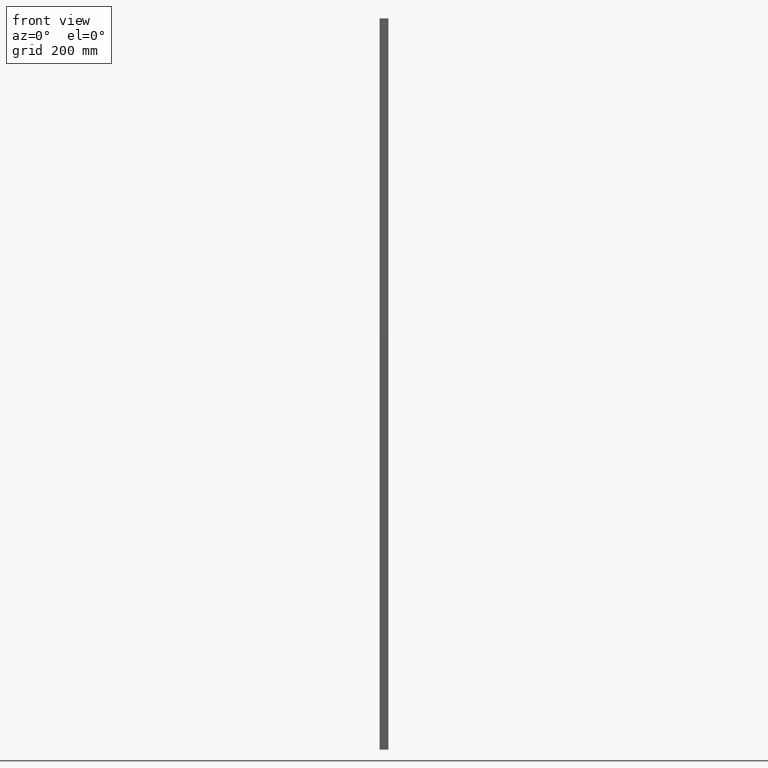
[diagram: clean part render]
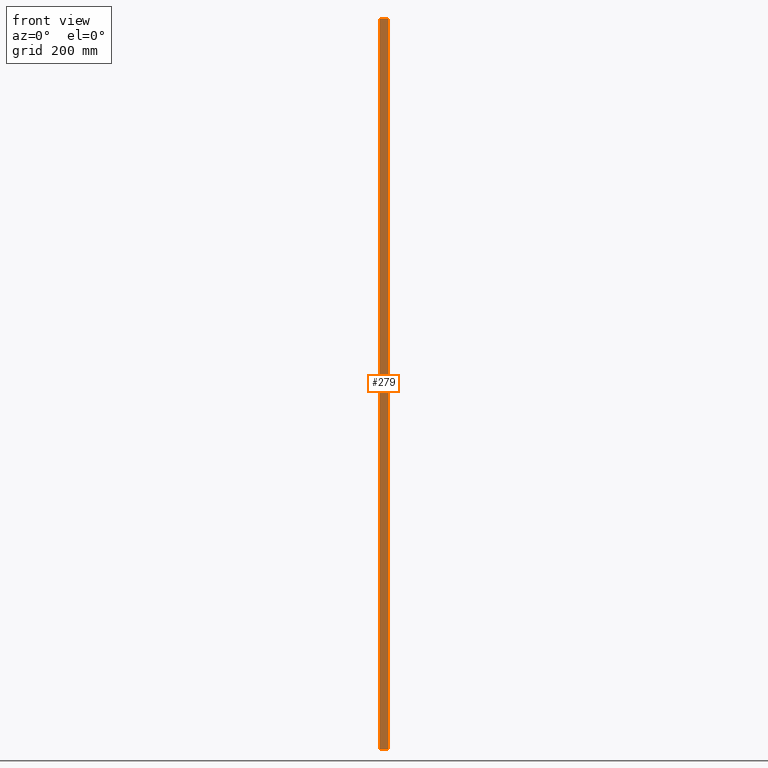
[diagram: same view with one face highlighted and labeled with its STEP entity id]
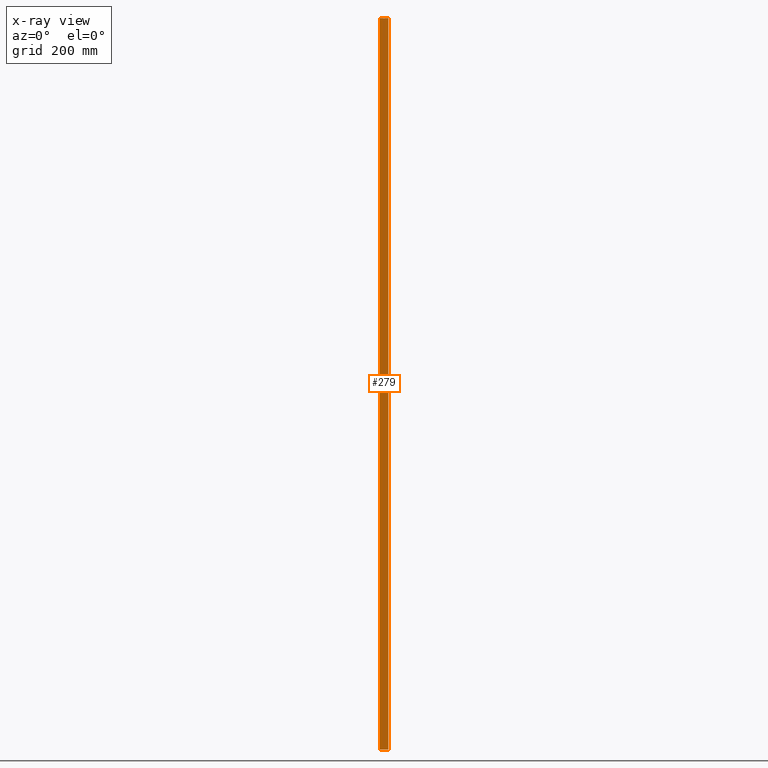
[diagram: x-ray of the same camera — body ghosted, the highlighted face saturated]
A machine part, front view. The second image highlights one B-rep face of the part: STEP entity #279.
The next image is the same camera in x-ray: the body ghosted, the highlighted face saturated — about 0% of this face is hidden behind the body in this view.
In plain terms, the highlighted planar face has unit normal (0, 1, 0).
Its self-contained STEP definition (entity closure, byte-faithful):
#5 = DIRECTION ( 'NONE',  ( 1.000000000000000000, 0.0000000000000000000, 0.0000000000000000000 ) ) ;
#20 = LINE ( 'NONE', #149, #322 ) ;
#33 = CARTESIAN_POINT ( 'NONE',  ( -14.70000000000000300, -12.49999999999999600, -1250.000000000000000 ) ) ;
#69 = LINE ( 'NONE', #33, #761 ) ;
#96 = VECTOR ( 'NONE', #816, 1000.000000000000000 ) ;
#119 = DIRECTION ( 'NONE',  ( -0.0000000000000000000, -0.0000000000000000000, -1.000000000000000000 ) ) ;
#149 = CARTESIAN_POINT ( 'NONE',  ( -14.70000000000000300, -12.49999999999999600, 1250.000000000000000 ) ) ;
#174 = ORIENTED_EDGE ( 'NONE', *, *, #661, .T. ) ;
#182 = ORIENTED_EDGE ( 'NONE', *, *, #206, .F. ) ;
#197 = FACE_OUTER_BOUND ( 'NONE', #744, .T. ) ;
#206 = EDGE_CURVE ( 'NONE', #277, #329, #694, .T. ) ;
#213 = EDGE_CURVE ( 'NONE', #372, #277, #521, .T. ) ;
#277 = VERTEX_POINT ( 'NONE', #682 ) ;
#279 = ADVANCED_FACE ( 'NONE', ( #197 ), #677, .F. ) ;
#310 = VECTOR ( 'NONE', #813, 1000.000000000000000 ) ;
#322 = VECTOR ( 'NONE', #119, 1000.000000000000000 ) ;
#329 = VERTEX_POINT ( 'NONE', #556 ) ;
#370 = VERTEX_POINT ( 'NONE', #516 ) ;
#372 = VERTEX_POINT ( 'NONE', #522 ) ;
#516 = CARTESIAN_POINT ( 'NONE',  ( -14.70000000000000300, -12.49999999999999600, -1250.000000000000000 ) ) ;
#521 = LINE ( 'NONE', #807, #96 ) ;
#522 = CARTESIAN_POINT ( 'NONE',  ( -14.70000000000000300, -12.49999999999999600, 1250.000000000000000 ) ) ;
#556 = CARTESIAN_POINT ( 'NONE',  ( 14.70000000000000300, -12.49999999999999600, -1250.000000000000000 ) ) ;
#605 = EDGE_CURVE ( 'NONE', #372, #370, #20, .T. ) ;
#661 = EDGE_CURVE ( 'NONE', #370, #329, #69, .T. ) ;
#673 = ORIENTED_EDGE ( 'NONE', *, *, #605, .T. ) ;
#674 = DIRECTION ( 'NONE',  ( 0.0000000000000000000, -0.0000000000000000000, 1.000000000000000000 ) ) ;
#676 = DIRECTION ( 'NONE',  ( 0.0000000000000000000, 1.000000000000000000, 0.0000000000000000000 ) ) ;
#677 = PLANE ( 'NONE',  #800 ) ;
#682 = CARTESIAN_POINT ( 'NONE',  ( 14.70000000000000300, -12.49999999999999600, 1250.000000000000000 ) ) ;
#694 = LINE ( 'NONE', #827, #310 ) ;
#722 = CARTESIAN_POINT ( 'NONE',  ( -14.70000000000000300, -12.49999999999999600, 1250.000000000000000 ) ) ;
#744 = EDGE_LOOP ( 'NONE', ( #174, #182, #754, #673 ) ) ;
#754 = ORIENTED_EDGE ( 'NONE', *, *, #213, .F. ) ;
#761 = VECTOR ( 'NONE', #5, 1000.000000000000000 ) ;
#800 = AXIS2_PLACEMENT_3D ( 'NONE', #722, #676, #674 ) ;
#807 = CARTESIAN_POINT ( 'NONE',  ( -14.70000000000000300, -12.49999999999999600, 1250.000000000000000 ) ) ;
#813 = DIRECTION ( 'NONE',  ( -0.0000000000000000000, -0.0000000000000000000, -1.000000000000000000 ) ) ;
#816 = DIRECTION ( 'NONE',  ( 1.000000000000000000, 0.0000000000000000000, 0.0000000000000000000 ) ) ;
#827 = CARTESIAN_POINT ( 'NONE',  ( 14.70000000000000300, -12.49999999999999600, 1250.000000000000000 ) ) ;